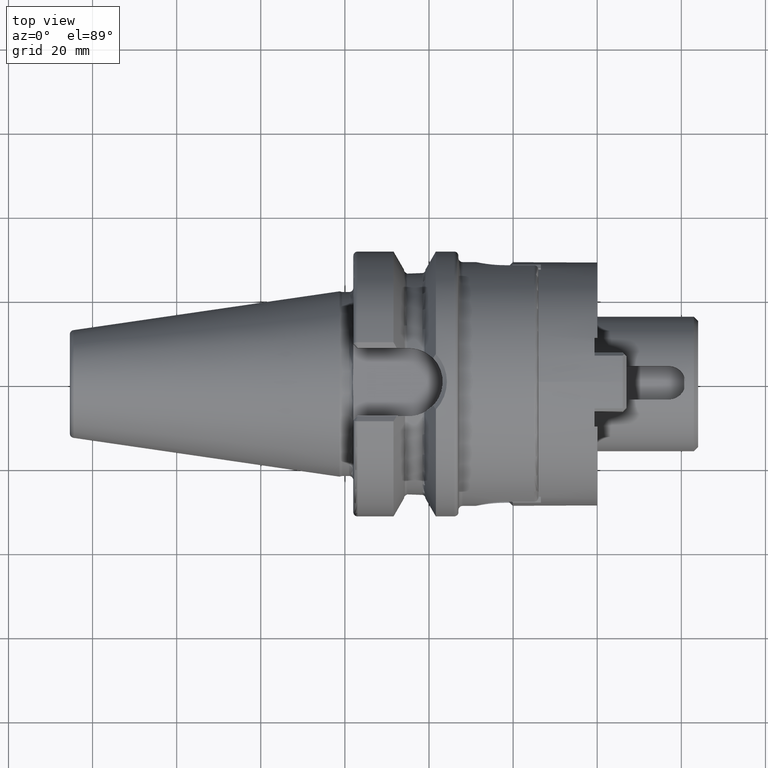
[diagram: clean part render]
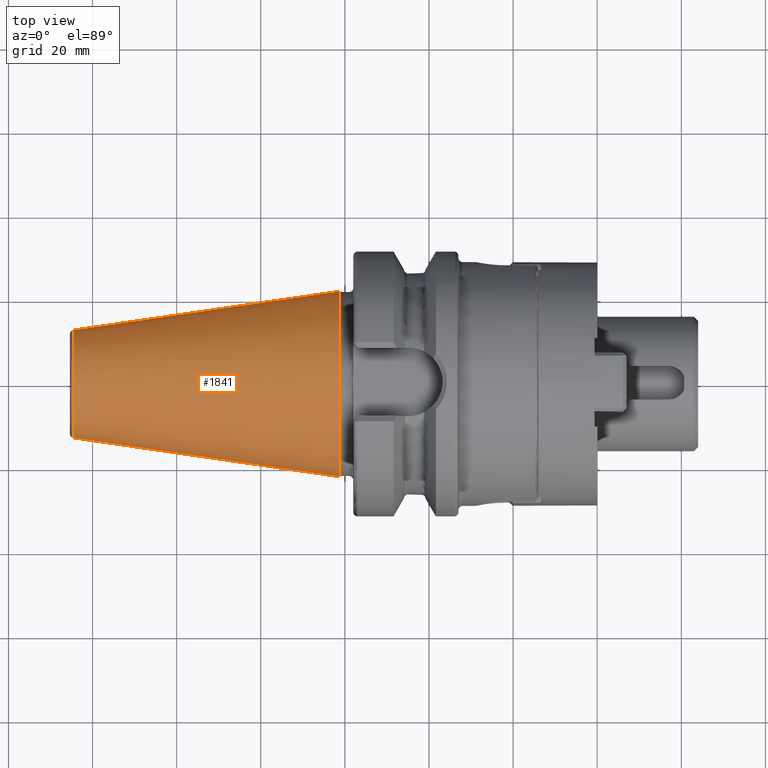
[diagram: same view with one face highlighted and labeled with its STEP entity id]
A machine part, top view. The second image highlights one B-rep face of the part: STEP entity #1841.
In plain terms, the highlighted conical surface has half-angle 8.298 deg.
Its self-contained STEP definition (entity closure, byte-faithful):
#37=CARTESIAN_POINT('',(-6.454431866917E1,0.E0,0.E0));
#38=DIRECTION('',(1.E0,0.E0,0.E0));
#39=DIRECTION('',(0.E0,1.E0,0.E0));
#40=AXIS2_PLACEMENT_3D('',#37,#38,#39);
#42=CARTESIAN_POINT('',(-1.266732031557E0,0.E0,0.E0));
#43=DIRECTION('',(1.E0,0.E0,0.E0));
#44=DIRECTION('',(0.E0,1.E0,0.E0));
#45=AXIS2_PLACEMENT_3D('',#42,#43,#44);
#47=DIRECTION('',(-9.895312636440E-1,-1.443186691705E-1,0.E0));
#48=VECTOR('',#47,6.394703124850E1);
#49=CARTESIAN_POINT('',(-1.266732031557E0,2.204025284980E1,0.E0));
#50=LINE('',#49,#48);
#51=DIRECTION('',(-9.895312636440E-1,1.443186691705E-1,0.E0));
#52=VECTOR('',#51,6.394703124850E1);
#53=CARTESIAN_POINT('',(-1.266732031557E0,-2.204025284980E1,0.E0));
#54=LINE('',#53,#52);
#1475=CARTESIAN_POINT('',(-6.454431866917E1,1.281150240261E1,0.E0));
#1477=VERTEX_POINT('',#1475);
#1479=CARTESIAN_POINT('',(-6.454431866917E1,-1.281150240261E1,0.E0));
#1481=VERTEX_POINT('',#1479);
#1694=CARTESIAN_POINT('',(-1.266732031557E0,2.204025284980E1,0.E0));
#1695=VERTEX_POINT('',#1694);
#1696=CARTESIAN_POINT('',(-1.266732031557E0,-2.204025284980E1,0.E0));
#1697=VERTEX_POINT('',#1696);
#1827=CARTESIAN_POINT('',(-3.290552535036E1,0.E0,0.E0));
#1828=DIRECTION('',(1.E0,0.E0,0.E0));
#1829=DIRECTION('',(0.E0,-1.E0,0.E0));
#1830=AXIS2_PLACEMENT_3D('',#1827,#1828,#1829);
#1831=CONICAL_SURFACE('',#1830,1.742587762621E1,8.297826828206E0);
#1833=ORIENTED_EDGE('',*,*,#1832,.F.);
#1835=ORIENTED_EDGE('',*,*,#1834,.T.);
#1837=ORIENTED_EDGE('',*,*,#1836,.T.);
#1838=ORIENTED_EDGE('',*,*,#1820,.F.);
#1839=EDGE_LOOP('',(#1833,#1835,#1837,#1838));
#1840=FACE_OUTER_BOUND('',#1839,.F.);
#1841=ADVANCED_FACE('',(#1840),#1831,.T.);
#41=CIRCLE('',#40,1.281150240261E1);
#46=CIRCLE('',#45,2.204025284980E1);
#1820=EDGE_CURVE('',#1477,#1481,#41,.T.);
#1832=EDGE_CURVE('',#1695,#1477,#50,.T.);
#1834=EDGE_CURVE('',#1695,#1697,#46,.T.);
#1836=EDGE_CURVE('',#1697,#1481,#54,.T.);